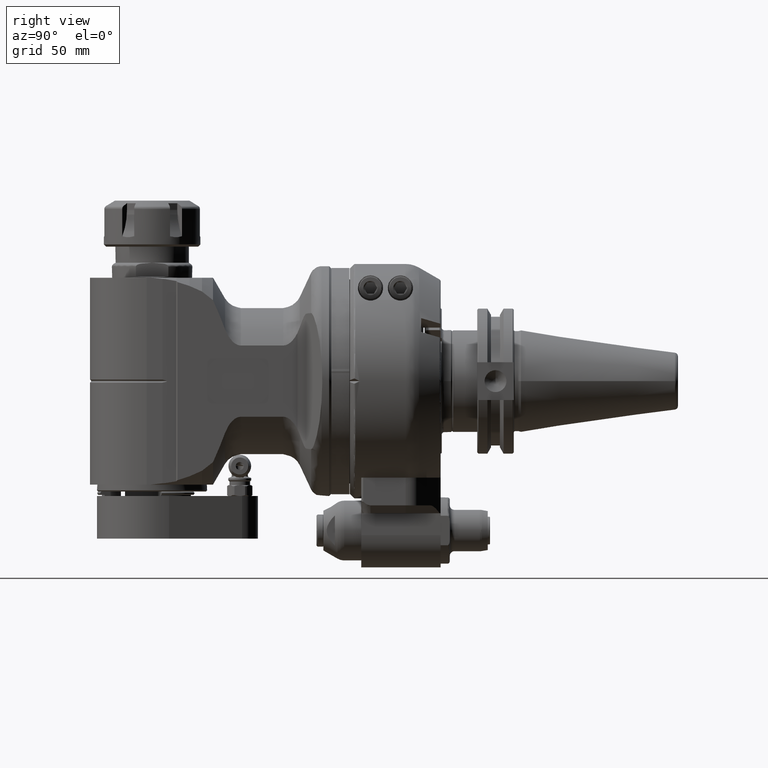
[diagram: clean part render]
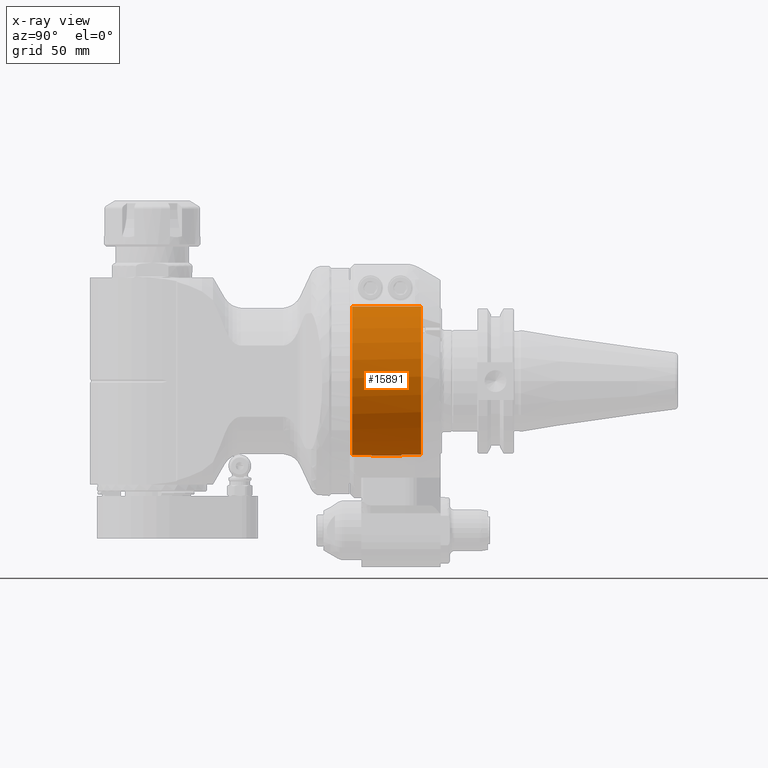
[diagram: x-ray — body ghosted, one internal face saturated and labeled with its STEP entity id]
A machine part, right view, then the same camera in x-ray: the body is ghosted and one INTERNAL B-rep face — a face not visible from any outside direction — is saturated and labeled: STEP entity #15891.
In plain terms, the highlighted cylindrical surface (partial cylindrical patch) has radius 32.5 mm, axis along (0, -1, 0).
Its self-contained STEP definition (entity closure, byte-faithful):
#880=CYLINDRICAL_SURFACE('',#17413,32.5);
#1630=CIRCLE('',#17364,32.5);
#1652=CIRCLE('',#17414,32.5);
#1653=CIRCLE('',#17415,32.5);
#1654=CIRCLE('',#17416,32.5);
#2493=FACE_OUTER_BOUND('',#3488,.T.);
#3488=EDGE_LOOP('',(#13437,#13438,#13439,#13440,#13441,#13442,#13443,#13444));
#4670=LINE('',#28821,#5829);
#4671=LINE('',#28824,#5830);
#4672=LINE('',#28828,#5831);
#4673=LINE('',#28832,#5832);
#5829=VECTOR('',#21125,8.5);
#5830=VECTOR('',#21128,8.5);
#5831=VECTOR('',#21131,30.);
#5832=VECTOR('',#21134,29.99999999998);
#7313=VERTEX_POINT('',#27929);
#7314=VERTEX_POINT('',#27931);
#7352=VERTEX_POINT('',#28819);
#7353=VERTEX_POINT('',#28823);
#7354=VERTEX_POINT('',#28825);
#7355=VERTEX_POINT('',#28827);
#7356=VERTEX_POINT('',#28829);
#7357=VERTEX_POINT('',#28831);
#9400=EDGE_CURVE('',#7314,#7313,#1630,.T.);
#9470=EDGE_CURVE('',#7313,#7352,#4670,.T.);
#9471=EDGE_CURVE('',#7314,#7353,#4671,.T.);
#9472=EDGE_CURVE('',#7354,#7352,#1652,.T.);
#9473=EDGE_CURVE('',#7354,#7355,#4672,.T.);
#9474=EDGE_CURVE('',#7356,#7355,#1653,.T.);
#9475=EDGE_CURVE('',#7356,#7357,#4673,.T.);
#9476=EDGE_CURVE('',#7353,#7357,#1654,.T.);
#13437=ORIENTED_EDGE('',*,*,#9471,.F.);
#13438=ORIENTED_EDGE('',*,*,#9400,.T.);
#13439=ORIENTED_EDGE('',*,*,#9470,.T.);
#13440=ORIENTED_EDGE('',*,*,#9472,.F.);
#13441=ORIENTED_EDGE('',*,*,#9473,.T.);
#13442=ORIENTED_EDGE('',*,*,#9474,.F.);
#13443=ORIENTED_EDGE('',*,*,#9475,.T.);
#13444=ORIENTED_EDGE('',*,*,#9476,.F.);
#15891=ADVANCED_FACE('',(#2493),#880,.F.);
#17364=AXIS2_PLACEMENT_3D('',#27932,#20994,#20995);
#17413=AXIS2_PLACEMENT_3D('',#28822,#21126,#21127);
#17414=AXIS2_PLACEMENT_3D('',#28826,#21129,#21130);
#17415=AXIS2_PLACEMENT_3D('',#28830,#21132,#21133);
#17416=AXIS2_PLACEMENT_3D('',#28833,#21135,#21136);
#20994=DIRECTION('center_axis',(0.,1.,0.));
#20995=DIRECTION('ref_axis',(0.164179104477598,0.,-0.986430545782588));
#21125=DIRECTION('',(0.,1.,0.));
#21126=DIRECTION('center_axis',(0.,-1.,0.));
#21127=DIRECTION('ref_axis',(1.38678298153134E-13,0.,-1.));
#21128=DIRECTION('',(0.,1.,0.));
#21129=DIRECTION('center_axis',(0.,-1.,0.));
#21130=DIRECTION('ref_axis',(-0.0461538461538519,0.,0.998934343430642));
#21131=DIRECTION('',(0.,-1.,0.));
#21132=DIRECTION('center_axis',(0.,1.,0.));
#21133=DIRECTION('ref_axis',(0.,0.,-1.));
#21134=DIRECTION('',(3.148370453234E-13,1.,-1.421085471521E-14));
#21135=DIRECTION('center_axis',(0.,-1.,0.));
#21136=DIRECTION('ref_axis',(0.164179104477598,0.,-0.986430545782588));
#27929=CARTESIAN_POINT('',(-5.335820895522,22.5,-32.05899273793));
#27931=CARTESIAN_POINT('',(5.335820895522,22.5,-32.05899273793));
#27932=CARTESIAN_POINT('Origin',(0.,22.5,0.));
#28819=CARTESIAN_POINT('',(-5.335820895522,31.,-32.05899273793));
#28821=CARTESIAN_POINT('',(-5.335820895522,22.5,-32.05899273793));
#28822=CARTESIAN_POINT('Origin',(0.,16.5,0.));
#28823=CARTESIAN_POINT('',(5.335820895522,31.,-32.05899273793));
#28824=CARTESIAN_POINT('',(5.335820895522,22.5,-32.05899273793));
#28825=CARTESIAN_POINT('',(-1.5,31.,32.4653661615));
#28826=CARTESIAN_POINT('Origin',(0.,31.,0.));
#28827=CARTESIAN_POINT('',(-1.5,1.,32.4653661615));
#28828=CARTESIAN_POINT('',(-1.5,31.,32.4653661615));
#28829=CARTESIAN_POINT('',(1.499999999991,1.000000000023,32.4653661615));
#28830=CARTESIAN_POINT('Origin',(0.,0.9999999999999,0.));
#28831=CARTESIAN_POINT('',(1.5,31.,32.4653661615));
#28832=CARTESIAN_POINT('',(1.499999999991,1.000000000023,32.4653661615));
#28833=CARTESIAN_POINT('Origin',(0.,31.,0.));